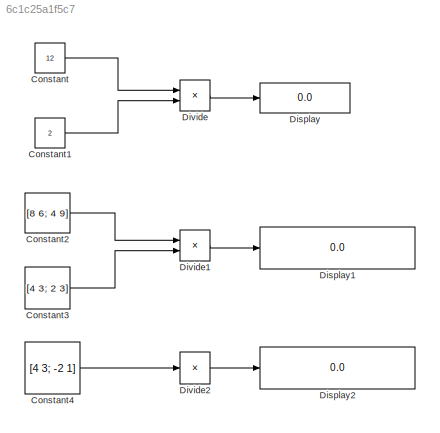
MODEL slx_6c1c25a1f5c7
KIND model
CONFIG AbsTol = auto
CONFIG EnableMultiTasking = off
CONFIG FixedStep = auto
CONFIG MaxStep = auto
CONFIG MinStep = auto
CONFIG RelTol = 1e-3
CONFIG SampleTimeConstraint = Unconstrained
CONFIG Solver = VariableStepAuto
CONFIG SolverName = VariableStepAuto
CONFIG StartTime = 0.0
CONFIG StopTime = 10.0
BLOCK [Constant] Constant
  Value = 12
BLOCK [Constant] Constant1
  Value = 2
BLOCK [Constant] Constant2
  Value = [8 6; 4 9]
BLOCK [Constant] Constant3
  Value = [4 3; 2 3]
BLOCK [Constant] Constant4
  Value = [4 3; -2 1]
BLOCK [Display] Display
  Decimation = 1
  Ports = [1]
BLOCK [Display] Display1
  Decimation = 1
  Ports = [1]
BLOCK [Display] Display2
  Decimation = 1
  Ports = [1]
BLOCK [Product] Divide
  Inputs = */
  Ports = [2, 1]
BLOCK [Product] Divide1
  Inputs = */
  Ports = [2, 1]
BLOCK [Product] Divide2
  Inputs = /
  Multiplication = Matrix(*)
  Ports = [1, 1]
LINE Constant1:1 -> Divide:2
LINE Constant2:1 -> Divide1:1
LINE Constant3:1 -> Divide1:2
LINE Constant4:1 -> Divide2:1
LINE Constant:1 -> Divide:1
LINE Divide1:1 -> Display1:1
LINE Divide2:1 -> Display2:1
LINE Divide:1 -> Display:1
